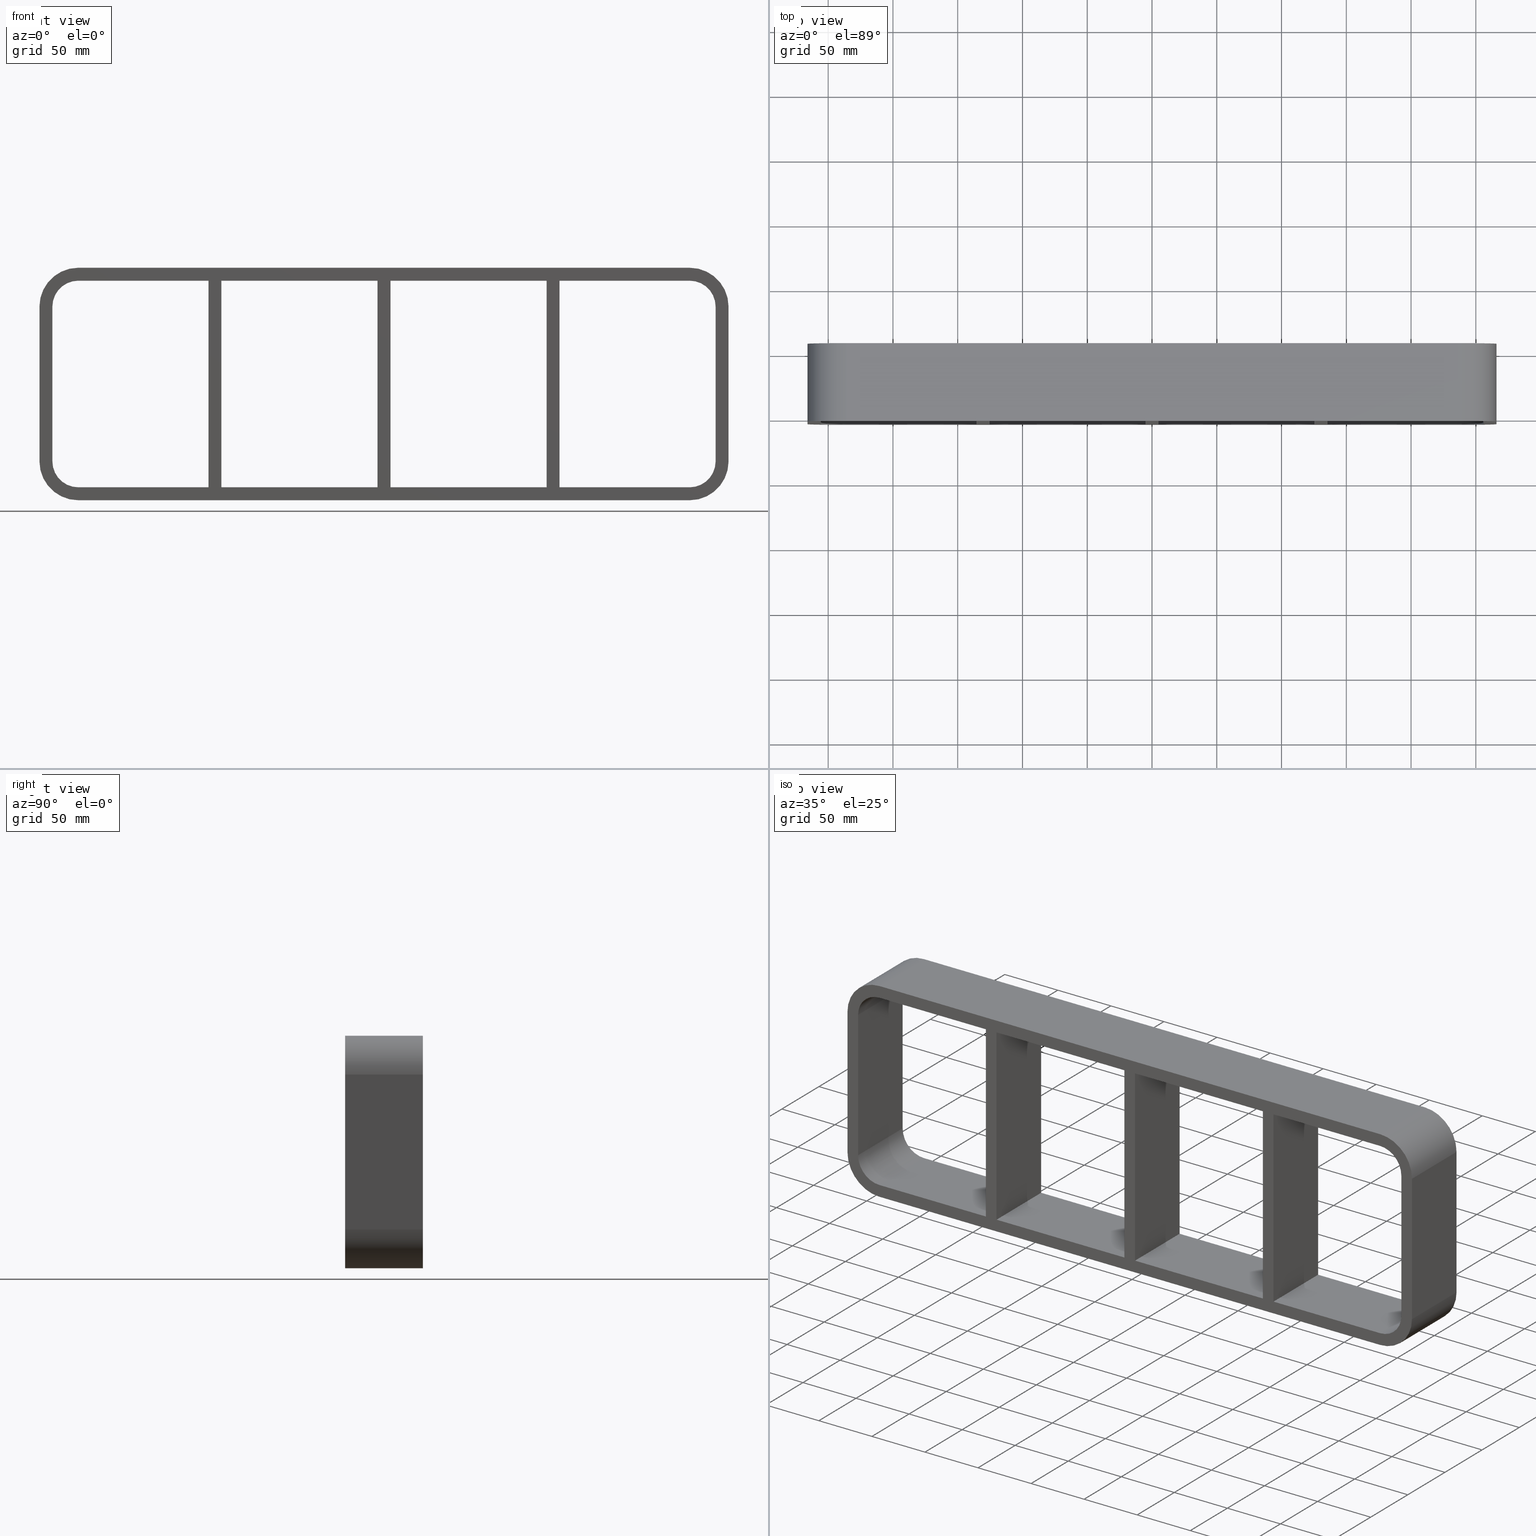
[diagram: canonical four-view strip — front | top / right | iso, engineering-drawing reading convention]
A machine part, canonical four-view strip (front | top / right | iso — engineering-drawing reading convention). The complete STEP part file that produces these views, byte-faithful:
ISO-10303-21;
HEADER;
/****************************************************************
 * Generated by software with PDElib inside                    *
 * PDElib Version v51a, created Wed 11/30/2011                  *
 * ITI Transcendata (http://www.transcendata.com/)              *
 ****************************************************************/
FILE_DESCRIPTION((''),'2;1');
FILE_NAME('N:\\Projects\\Ongoing_Projects\\12403 Transit Designer\\Product-data\\Product Data\\Transit designer Cad Generator\\CreatedFiles\\STEP\\SRCR20-4X4.stp','2014-10-31T09:51:29',(''),(''),'Autodesk Inventor 2013','Autodesk Inventor 2013','');
FILE_SCHEMA(('AUTOMOTIVE_DESIGN { 1 0 10303 214 1 1 1 1 }'));
ENDSEC;
DATA;
#5=APPLICATION_CONTEXT('automotive design');
#6=APPLICATION_PROTOCOL_DEFINITION('International Standard','automotive_design',2001,#5);
#7=PRODUCT_CONTEXT('',#5,'mechanical');
#8=PRODUCT('GH-ISO','GH-ISO',$,(#7));
#9=PRODUCT_RELATED_PRODUCT_CATEGORY('part',$,(#8));
#10=PRODUCT_DEFINITION_FORMATION('',$,#8);
#11=PRODUCT_DEFINITION_CONTEXT('part definition',#5,'design');
#12=PRODUCT_DEFINITION('',$,#10,#11);
#18=(NAMED_UNIT(*)PLANE_ANGLE_UNIT()SI_UNIT($,.RADIAN.));
#19=DIMENSIONAL_EXPONENTS(0.0,0.0,0.0,0.0,0.0,0.0,0.0);
#20=PLANE_ANGLE_MEASURE_WITH_UNIT(PLANE_ANGLE_MEASURE(0.0174532925),#18);
#24=(CONVERSION_BASED_UNIT('DEGREE',#20)NAMED_UNIT(#19)PLANE_ANGLE_UNIT());
#28=(NAMED_UNIT(*)SI_UNIT($,.STERADIAN.)SOLID_ANGLE_UNIT());
#32=(LENGTH_UNIT()NAMED_UNIT(*)SI_UNIT(.MILLI.,.METRE.));
#34=UNCERTAINTY_MEASURE_WITH_UNIT(LENGTH_MEASURE(0.01),#32,'DISTANCE_ACCURACY_VALUE','');
#36=(GEOMETRIC_REPRESENTATION_CONTEXT(3)GLOBAL_UNCERTAINTY_ASSIGNED_CONTEXT((#34))GLOBAL_UNIT_ASSIGNED_CONTEXT((#24,#28,#32))REPRESENTATION_CONTEXT('None','None'));
#37=AXIS2_PLACEMENT_3D('',#38,#39,#40);
#38=CARTESIAN_POINT('',(0.0,0.0,0.0));
#39=DIRECTION('',(0.0,0.0,1.0));
#40=DIRECTION('',(1.0,0.0,0.0));
#41=SHAPE_REPRESENTATION('',(#37),#36);
#42=PRODUCT_DEFINITION_SHAPE('','',#12);
#43=SHAPE_DEFINITION_REPRESENTATION(#42,#41);
#49=(NAMED_UNIT(*)PLANE_ANGLE_UNIT()SI_UNIT($,.RADIAN.));
#50=DIMENSIONAL_EXPONENTS(0.0,0.0,0.0,0.0,0.0,0.0,0.0);
#51=PLANE_ANGLE_MEASURE_WITH_UNIT(PLANE_ANGLE_MEASURE(0.0174532925),#49);
#55=(CONVERSION_BASED_UNIT('DEGREE',#51)NAMED_UNIT(#50)PLANE_ANGLE_UNIT());
#59=(NAMED_UNIT(*)SI_UNIT($,.STERADIAN.)SOLID_ANGLE_UNIT());
#63=(LENGTH_UNIT()NAMED_UNIT(*)SI_UNIT(.MILLI.,.METRE.));
#65=UNCERTAINTY_MEASURE_WITH_UNIT(LENGTH_MEASURE(0.000001),#63,'DISTANCE_ACCURACY_VALUE','');
#67=(GEOMETRIC_REPRESENTATION_CONTEXT(3)GLOBAL_UNCERTAINTY_ASSIGNED_CONTEXT((#65))GLOBAL_UNIT_ASSIGNED_CONTEXT((#55,#59,#63))REPRESENTATION_CONTEXT('','3D'));
#68=CARTESIAN_POINT('',(125.49999999999866,-3.0,-79.750000000000014));
#69=DIRECTION('',(-1.0,0.0,0.0));
#70=DIRECTION('',(0.0,0.0,1.0));
#71=AXIS2_PLACEMENT_3D('',#68,#69,#70);
#72=PLANE('',#71);
#73=CARTESIAN_POINT('',(125.49999999999866,-3.0,-79.750000000000014));
#74=VERTEX_POINT('',#73);
#75=CARTESIAN_POINT('',(125.49999999999869,-3.0,79.750000000000014));
#76=VERTEX_POINT('',#75);
#77=CARTESIAN_POINT('',(125.49999999999866,-3.0,-79.750000000000014));
#78=DIRECTION('',(0.0,0.0,1.0));
#79=VECTOR('',#78,159.50000000000003);
#80=LINE('',#77,#79);
#81=EDGE_CURVE('',#74,#76,#80,.T.);
#82=ORIENTED_EDGE('',*,*,#81,.T.);
#83=CARTESIAN_POINT('',(125.49999999999869,57.0,79.750000000000014));
#84=VERTEX_POINT('',#83);
#85=CARTESIAN_POINT('',(125.49999999999866,57.000000000000007,79.750000000000014));
#86=DIRECTION('',(0.0,-1.0,0.0));
#87=VECTOR('',#86,60.000000000000007);
#88=LINE('',#85,#87);
#89=EDGE_CURVE('',#84,#76,#88,.T.);
#90=ORIENTED_EDGE('',*,*,#89,.F.);
#91=CARTESIAN_POINT('',(125.49999999999866,57.0,-79.750000000000014));
#92=VERTEX_POINT('',#91);
#93=CARTESIAN_POINT('',(125.49999999999866,57.0,-79.750000000000014));
#94=DIRECTION('',(0.0,0.0,1.0));
#95=VECTOR('',#94,159.50000000000003);
#96=LINE('',#93,#95);
#97=EDGE_CURVE('',#92,#84,#96,.T.);
#98=ORIENTED_EDGE('',*,*,#97,.F.);
#99=CARTESIAN_POINT('',(125.49999999999866,-3.0,-79.750000000000014));
#100=DIRECTION('',(0.0,1.0,0.0));
#101=VECTOR('',#100,60.000000000000007);
#102=LINE('',#99,#101);
#103=EDGE_CURVE('',#74,#92,#102,.T.);
#104=ORIENTED_EDGE('',*,*,#103,.F.);
#105=EDGE_LOOP('',(#82,#90,#98,#104));
#106=FACE_OUTER_BOUND('',#105,.T.);
#107=ADVANCED_FACE('',(#106),#72,.T.);
#108=CARTESIAN_POINT('',(135.50000000000728,-3.0,79.750000000000014));
#109=DIRECTION('',(1.0,0.0,0.0));
#110=DIRECTION('',(0.0,0.0,-1.0));
#111=AXIS2_PLACEMENT_3D('',#108,#109,#110);
#112=PLANE('',#111);
#113=CARTESIAN_POINT('',(135.50000000000728,-3.0,79.750000000000014));
#114=VERTEX_POINT('',#113);
#115=CARTESIAN_POINT('',(135.50000000000728,-3.0,-79.74999999998424));
#116=VERTEX_POINT('',#115);
#117=CARTESIAN_POINT('',(135.50000000000728,-3.0,79.750000000000014));
#118=DIRECTION('',(0.0,0.0,-1.0));
#119=VECTOR('',#118,159.49999999998425);
#120=LINE('',#117,#119);
#121=EDGE_CURVE('',#114,#116,#120,.T.);
#122=ORIENTED_EDGE('',*,*,#121,.T.);
#123=CARTESIAN_POINT('',(135.50000000000728,57.0,-79.74999999998424));
#124=VERTEX_POINT('',#123);
#125=CARTESIAN_POINT('',(135.50000000000728,57.000000000000007,-79.750000000000014));
#126=DIRECTION('',(0.0,-1.0,0.0));
#127=VECTOR('',#126,60.000000000000007);
#128=LINE('',#125,#127);
#129=EDGE_CURVE('',#124,#116,#128,.T.);
#130=ORIENTED_EDGE('',*,*,#129,.F.);
#131=CARTESIAN_POINT('',(135.50000000000728,57.0,79.750000000000014));
#132=VERTEX_POINT('',#131);
#133=CARTESIAN_POINT('',(135.50000000000728,57.0,79.750000000000014));
#134=DIRECTION('',(0.0,0.0,-1.0));
#135=VECTOR('',#134,159.49999999998425);
#136=LINE('',#133,#135);
#137=EDGE_CURVE('',#132,#124,#136,.T.);
#138=ORIENTED_EDGE('',*,*,#137,.F.);
#139=CARTESIAN_POINT('',(135.50000000000728,-3.0,79.750000000000014));
#140=DIRECTION('',(0.0,1.0,0.0));
#141=VECTOR('',#140,60.000000000000007);
#142=LINE('',#139,#141);
#143=EDGE_CURVE('',#114,#132,#142,.T.);
#144=ORIENTED_EDGE('',*,*,#143,.F.);
#145=EDGE_LOOP('',(#122,#130,#138,#144));
#146=FACE_OUTER_BOUND('',#145,.T.);
#147=ADVANCED_FACE('',(#146),#112,.T.);
#148=CARTESIAN_POINT('',(-5.00000000000135,-3.0,-79.750000000000014));
#149=DIRECTION('',(-1.0,0.0,0.0));
#150=DIRECTION('',(0.0,0.0,1.0));
#151=AXIS2_PLACEMENT_3D('',#148,#149,#150);
#152=PLANE('',#151);
#153=CARTESIAN_POINT('',(-5.00000000000135,-3.0,-79.750000000000014));
#154=VERTEX_POINT('',#153);
#155=CARTESIAN_POINT('',(-5.000000000001315,-3.0,79.750000000000014));
#156=VERTEX_POINT('',#155);
#157=CARTESIAN_POINT('',(-5.00000000000135,-3.0,-79.750000000000014));
#158=DIRECTION('',(0.0,0.0,1.0));
#159=VECTOR('',#158,159.50000000000003);
#160=LINE('',#157,#159);
#161=EDGE_CURVE('',#154,#156,#160,.T.);
#162=ORIENTED_EDGE('',*,*,#161,.T.);
#163=CARTESIAN_POINT('',(-5.000000000001315,57.0,79.750000000000014));
#164=VERTEX_POINT('',#163);
#165=CARTESIAN_POINT('',(-5.000000000001315,57.000000000000007,79.750000000000014));
#166=DIRECTION('',(0.0,-1.0,0.0));
#167=VECTOR('',#166,60.000000000000007);
#168=LINE('',#165,#167);
#169=EDGE_CURVE('',#164,#156,#168,.T.);
#170=ORIENTED_EDGE('',*,*,#169,.F.);
#171=CARTESIAN_POINT('',(-5.00000000000135,57.0,-79.750000000000014));
#172=VERTEX_POINT('',#171);
#173=CARTESIAN_POINT('',(-5.00000000000135,57.0,-79.750000000000014));
#174=DIRECTION('',(0.0,0.0,1.0));
#175=VECTOR('',#174,159.50000000000003);
#176=LINE('',#173,#175);
#177=EDGE_CURVE('',#172,#164,#176,.T.);
#178=ORIENTED_EDGE('',*,*,#177,.F.);
#179=CARTESIAN_POINT('',(-5.00000000000135,-3.0,-79.750000000000014));
#180=DIRECTION('',(0.0,1.0,0.0));
#181=VECTOR('',#180,60.000000000000007);
#182=LINE('',#179,#181);
#183=EDGE_CURVE('',#154,#172,#182,.T.);
#184=ORIENTED_EDGE('',*,*,#183,.F.);
#185=EDGE_LOOP('',(#162,#170,#178,#184));
#186=FACE_OUTER_BOUND('',#185,.T.);
#187=ADVANCED_FACE('',(#186),#152,.T.);
#188=CARTESIAN_POINT('',(5.000000000007283,-3.0,79.750000000000014));
#189=DIRECTION('',(1.0,0.0,0.0));
#190=DIRECTION('',(0.0,0.0,-1.0));
#191=AXIS2_PLACEMENT_3D('',#188,#189,#190);
#192=PLANE('',#191);
#193=CARTESIAN_POINT('',(5.000000000007283,-3.0,79.750000000000014));
#194=VERTEX_POINT('',#193);
#195=CARTESIAN_POINT('',(5.000000000007283,-3.0,-79.74999999998424));
#196=VERTEX_POINT('',#195);
#197=CARTESIAN_POINT('',(5.000000000007283,-3.0,79.750000000000014));
#198=DIRECTION('',(0.0,0.0,-1.0));
#199=VECTOR('',#198,159.49999999998425);
#200=LINE('',#197,#199);
#201=EDGE_CURVE('',#194,#196,#200,.T.);
#202=ORIENTED_EDGE('',*,*,#201,.T.);
#203=CARTESIAN_POINT('',(5.000000000007283,57.0,-79.74999999998424));
#204=VERTEX_POINT('',#203);
#205=CARTESIAN_POINT('',(5.000000000007283,57.000000000000007,-79.750000000000014));
#206=DIRECTION('',(0.0,-1.0,0.0));
#207=VECTOR('',#206,60.000000000000007);
#208=LINE('',#205,#207);
#209=EDGE_CURVE('',#204,#196,#208,.T.);
#210=ORIENTED_EDGE('',*,*,#209,.F.);
#211=CARTESIAN_POINT('',(5.000000000007283,57.0,79.750000000000014));
#212=VERTEX_POINT('',#211);
#213=CARTESIAN_POINT('',(5.000000000007283,57.0,79.750000000000014));
#214=DIRECTION('',(0.0,0.0,-1.0));
#215=VECTOR('',#214,159.49999999998425);
#216=LINE('',#213,#215);
#217=EDGE_CURVE('',#212,#204,#216,.T.);
#218=ORIENTED_EDGE('',*,*,#217,.F.);
#219=CARTESIAN_POINT('',(5.000000000007283,-3.0,79.750000000000014));
#220=DIRECTION('',(0.0,1.0,0.0));
#221=VECTOR('',#220,60.000000000000007);
#222=LINE('',#219,#221);
#223=EDGE_CURVE('',#194,#212,#222,.T.);
#224=ORIENTED_EDGE('',*,*,#223,.F.);
#225=EDGE_LOOP('',(#202,#210,#218,#224));
#226=FACE_OUTER_BOUND('',#225,.T.);
#227=ADVANCED_FACE('',(#226),#192,.T.);
#228=CARTESIAN_POINT('',(256.00000000000006,0.0,-79.750000000000014));
#229=DIRECTION('',(0.0,0.0,-1.0));
#230=DIRECTION('',(-1.0,0.0,0.0));
#231=AXIS2_PLACEMENT_3D('',#228,#229,#230);
#232=PLANE('',#231);
#233=ORIENTED_EDGE('',*,*,#183,.T.);
#234=CARTESIAN_POINT('',(-125.49999999999272,57.0,-79.74999999998424));
#235=VERTEX_POINT('',#234);
#236=CARTESIAN_POINT('',(-125.49999999999275,57.0,-79.750000000000014));
#237=DIRECTION('',(1.0,0.0,0.0));
#238=VECTOR('',#237,120.49999999999142);
#239=LINE('',#236,#238);
#240=EDGE_CURVE('',#235,#172,#239,.T.);
#241=ORIENTED_EDGE('',*,*,#240,.F.);
#242=CARTESIAN_POINT('',(-125.49999999999272,-3.0,-79.74999999998424));
#243=VERTEX_POINT('',#242);
#244=CARTESIAN_POINT('',(-125.49999999999274,57.000000000000007,-79.750000000000014));
#245=DIRECTION('',(0.0,-1.0,0.0));
#246=VECTOR('',#245,60.000000000000007);
#247=LINE('',#244,#246);
#248=EDGE_CURVE('',#235,#243,#247,.T.);
#249=ORIENTED_EDGE('',*,*,#248,.T.);
#250=CARTESIAN_POINT('',(-5.000000000001336,-3.0,-79.750000000000014));
#251=DIRECTION('',(-1.0,0.0,0.0));
#252=VECTOR('',#251,120.49999999999142);
#253=LINE('',#250,#252);
#254=EDGE_CURVE('',#154,#243,#253,.T.);
#255=ORIENTED_EDGE('',*,*,#254,.F.);
#256=EDGE_LOOP('',(#233,#241,#249,#255));
#257=FACE_OUTER_BOUND('',#256,.T.);
#258=ADVANCED_FACE('',(#257),#232,.F.);
#259=CARTESIAN_POINT('',(256.00000000000006,0.0,-79.750000000000014));
#260=DIRECTION('',(0.0,0.0,-1.0));
#261=DIRECTION('',(-1.0,0.0,0.0));
#262=AXIS2_PLACEMENT_3D('',#259,#260,#261);
#263=PLANE('',#262);
#264=ORIENTED_EDGE('',*,*,#103,.T.);
#265=CARTESIAN_POINT('',(5.00000000000729,57.0,-79.750000000000014));
#266=DIRECTION('',(1.0,0.0,0.0));
#267=VECTOR('',#266,120.49999999999137);
#268=LINE('',#265,#267);
#269=EDGE_CURVE('',#204,#92,#268,.T.);
#270=ORIENTED_EDGE('',*,*,#269,.F.);
#271=ORIENTED_EDGE('',*,*,#209,.T.);
#272=CARTESIAN_POINT('',(125.49999999999866,-3.0,-79.750000000000014));
#273=DIRECTION('',(-1.0,0.0,0.0));
#274=VECTOR('',#273,120.49999999999137);
#275=LINE('',#272,#274);
#276=EDGE_CURVE('',#74,#196,#275,.T.);
#277=ORIENTED_EDGE('',*,*,#276,.F.);
#278=EDGE_LOOP('',(#264,#270,#271,#277));
#279=FACE_OUTER_BOUND('',#278,.T.);
#280=ADVANCED_FACE('',(#279),#263,.F.);
#281=CARTESIAN_POINT('',(256.00000000000006,0.0,-79.750000000000014));
#282=DIRECTION('',(0.0,0.0,-1.0));
#283=DIRECTION('',(-1.0,0.0,0.0));
#284=AXIS2_PLACEMENT_3D('',#281,#282,#283);
#285=PLANE('',#284);
#286=ORIENTED_EDGE('',*,*,#129,.T.);
#287=CARTESIAN_POINT('',(236.00000000000006,-3.0,-79.750000000000014));
#288=VERTEX_POINT('',#287);
#289=CARTESIAN_POINT('',(236.00000000000006,-3.0,-79.750000000000014));
#290=DIRECTION('',(-1.0,0.0,0.0));
#291=VECTOR('',#290,100.49999999999275);
#292=LINE('',#289,#291);
#293=EDGE_CURVE('',#288,#116,#292,.T.);
#294=ORIENTED_EDGE('',*,*,#293,.F.);
#295=CARTESIAN_POINT('',(236.00000000000006,57.0,-79.750000000000014));
#296=VERTEX_POINT('',#295);
#297=CARTESIAN_POINT('',(236.00000000000006,57.0,-79.750000000000014));
#298=DIRECTION('',(0.0,-1.0,0.0));
#299=VECTOR('',#298,60.0);
#300=LINE('',#297,#299);
#301=EDGE_CURVE('',#296,#288,#300,.T.);
#302=ORIENTED_EDGE('',*,*,#301,.F.);
#303=CARTESIAN_POINT('',(135.5000000000073,57.0,-79.750000000000014));
#304=DIRECTION('',(1.0,0.0,0.0));
#305=VECTOR('',#304,100.49999999999275);
#306=LINE('',#303,#305);
#307=EDGE_CURVE('',#124,#296,#306,.T.);
#308=ORIENTED_EDGE('',*,*,#307,.F.);
#309=EDGE_LOOP('',(#286,#294,#302,#308));
#310=FACE_OUTER_BOUND('',#309,.T.);
#311=ADVANCED_FACE('',(#310),#285,.F.);
#312=CARTESIAN_POINT('',(-256.0,0.0,79.750000000000014));
#313=DIRECTION('',(0.0,0.0,1.0));
#314=DIRECTION('',(1.0,0.0,0.0));
#315=AXIS2_PLACEMENT_3D('',#312,#313,#314);
#316=PLANE('',#315);
#317=ORIENTED_EDGE('',*,*,#169,.T.);
#318=CARTESIAN_POINT('',(-125.49999999999272,-3.0,79.750000000000014));
#319=VERTEX_POINT('',#318);
#320=CARTESIAN_POINT('',(-125.49999999999272,-3.0,79.750000000000014));
#321=DIRECTION('',(1.0,0.0,0.0));
#322=VECTOR('',#321,120.49999999999142);
#323=LINE('',#320,#322);
#324=EDGE_CURVE('',#319,#156,#323,.T.);
#325=ORIENTED_EDGE('',*,*,#324,.F.);
#326=CARTESIAN_POINT('',(-125.49999999999272,57.0,79.750000000000014));
#327=VERTEX_POINT('',#326);
#328=CARTESIAN_POINT('',(-125.49999999999272,-3.0,79.750000000000014));
#329=DIRECTION('',(0.0,1.0,0.0));
#330=VECTOR('',#329,60.000000000000007);
#331=LINE('',#328,#330);
#332=EDGE_CURVE('',#319,#327,#331,.T.);
#333=ORIENTED_EDGE('',*,*,#332,.T.);
#334=CARTESIAN_POINT('',(-5.000000000001307,57.0,79.750000000000014));
#335=DIRECTION('',(-1.0,0.0,0.0));
#336=VECTOR('',#335,120.49999999999142);
#337=LINE('',#334,#336);
#338=EDGE_CURVE('',#164,#327,#337,.T.);
#339=ORIENTED_EDGE('',*,*,#338,.F.);
#340=EDGE_LOOP('',(#317,#325,#333,#339));
#341=FACE_OUTER_BOUND('',#340,.T.);
#342=ADVANCED_FACE('',(#341),#316,.F.);
#343=CARTESIAN_POINT('',(-256.0,0.0,79.750000000000014));
#344=DIRECTION('',(0.0,0.0,1.0));
#345=DIRECTION('',(1.0,0.0,0.0));
#346=AXIS2_PLACEMENT_3D('',#343,#344,#345);
#347=PLANE('',#346);
#348=ORIENTED_EDGE('',*,*,#143,.T.);
#349=CARTESIAN_POINT('',(236.00000000000006,57.0,79.750000000000014));
#350=VERTEX_POINT('',#349);
#351=CARTESIAN_POINT('',(236.00000000000006,57.0,79.750000000000014));
#352=DIRECTION('',(-1.0,0.0,0.0));
#353=VECTOR('',#352,100.49999999999278);
#354=LINE('',#351,#353);
#355=EDGE_CURVE('',#350,#132,#354,.T.);
#356=ORIENTED_EDGE('',*,*,#355,.F.);
#357=CARTESIAN_POINT('',(236.00000000000006,-3.0,79.750000000000014));
#358=VERTEX_POINT('',#357);
#359=CARTESIAN_POINT('',(236.0,-3.0,79.750000000000014));
#360=DIRECTION('',(0.0,1.0,0.0));
#361=VECTOR('',#360,60.0);
#362=LINE('',#359,#361);
#363=EDGE_CURVE('',#358,#350,#362,.T.);
#364=ORIENTED_EDGE('',*,*,#363,.F.);
#365=CARTESIAN_POINT('',(135.50000000000728,-3.0,79.750000000000014));
#366=DIRECTION('',(1.0,0.0,0.0));
#367=VECTOR('',#366,100.49999999999278);
#368=LINE('',#365,#367);
#369=EDGE_CURVE('',#114,#358,#368,.T.);
#370=ORIENTED_EDGE('',*,*,#369,.F.);
#371=EDGE_LOOP('',(#348,#356,#364,#370));
#372=FACE_OUTER_BOUND('',#371,.T.);
#373=ADVANCED_FACE('',(#372),#347,.F.);
#374=CARTESIAN_POINT('',(-256.0,0.0,79.750000000000014));
#375=DIRECTION('',(0.0,0.0,1.0));
#376=DIRECTION('',(1.0,0.0,0.0));
#377=AXIS2_PLACEMENT_3D('',#374,#375,#376);
#378=PLANE('',#377);
#379=ORIENTED_EDGE('',*,*,#89,.T.);
#380=CARTESIAN_POINT('',(5.000000000007276,-3.0,79.750000000000014));
#381=DIRECTION('',(1.0,0.0,0.0));
#382=VECTOR('',#381,120.49999999999142);
#383=LINE('',#380,#382);
#384=EDGE_CURVE('',#194,#76,#383,.T.);
#385=ORIENTED_EDGE('',*,*,#384,.F.);
#386=ORIENTED_EDGE('',*,*,#223,.T.);
#387=CARTESIAN_POINT('',(125.49999999999869,57.0,79.750000000000014));
#388=DIRECTION('',(-1.0,0.0,0.0));
#389=VECTOR('',#388,120.49999999999142);
#390=LINE('',#387,#389);
#391=EDGE_CURVE('',#84,#212,#390,.T.);
#392=ORIENTED_EDGE('',*,*,#391,.F.);
#393=EDGE_LOOP('',(#379,#385,#386,#392));
#394=FACE_OUTER_BOUND('',#393,.T.);
#395=ADVANCED_FACE('',(#394),#378,.F.);
#396=CARTESIAN_POINT('',(-135.50000000000136,-3.0,-79.750000000000014));
#397=DIRECTION('',(-1.0,0.0,0.0));
#398=DIRECTION('',(0.0,0.0,1.0));
#399=AXIS2_PLACEMENT_3D('',#396,#397,#398);
#400=PLANE('',#399);
#401=CARTESIAN_POINT('',(-135.50000000000136,-3.0,-79.750000000000014));
#402=VERTEX_POINT('',#401);
#403=CARTESIAN_POINT('',(-135.50000000000131,-3.0,79.750000000000014));
#404=VERTEX_POINT('',#403);
#405=CARTESIAN_POINT('',(-135.50000000000136,-3.0,-79.750000000000014));
#406=DIRECTION('',(0.0,0.0,1.0));
#407=VECTOR('',#406,159.50000000000003);
#408=LINE('',#405,#407);
#409=EDGE_CURVE('',#402,#404,#408,.T.);
#410=ORIENTED_EDGE('',*,*,#409,.T.);
#411=CARTESIAN_POINT('',(-135.50000000000131,57.0,79.750000000000014));
#412=VERTEX_POINT('',#411);
#413=CARTESIAN_POINT('',(-135.50000000000131,57.000000000000007,79.750000000000014));
#414=DIRECTION('',(0.0,-1.0,0.0));
#415=VECTOR('',#414,60.000000000000007);
#416=LINE('',#413,#415);
#417=EDGE_CURVE('',#412,#404,#416,.T.);
#418=ORIENTED_EDGE('',*,*,#417,.F.);
#419=CARTESIAN_POINT('',(-135.50000000000136,57.0,-79.750000000000014));
#420=VERTEX_POINT('',#419);
#421=CARTESIAN_POINT('',(-135.50000000000136,57.0,-79.750000000000014));
#422=DIRECTION('',(0.0,0.0,1.0));
#423=VECTOR('',#422,159.50000000000003);
#424=LINE('',#421,#423);
#425=EDGE_CURVE('',#420,#412,#424,.T.);
#426=ORIENTED_EDGE('',*,*,#425,.F.);
#427=CARTESIAN_POINT('',(-135.50000000000136,-3.0,-79.750000000000014));
#428=DIRECTION('',(0.0,1.0,0.0));
#429=VECTOR('',#428,60.000000000000007);
#430=LINE('',#427,#429);
#431=EDGE_CURVE('',#402,#420,#430,.T.);
#432=ORIENTED_EDGE('',*,*,#431,.F.);
#433=EDGE_LOOP('',(#410,#418,#426,#432));
#434=FACE_OUTER_BOUND('',#433,.T.);
#435=ADVANCED_FACE('',(#434),#400,.T.);
#436=CARTESIAN_POINT('',(-125.49999999999272,-3.0,79.750000000000014));
#437=DIRECTION('',(1.0,0.0,0.0));
#438=DIRECTION('',(0.0,0.0,-1.0));
#439=AXIS2_PLACEMENT_3D('',#436,#437,#438);
#440=PLANE('',#439);
#441=CARTESIAN_POINT('',(-125.49999999999272,-3.0,79.750000000000014));
#442=DIRECTION('',(0.0,0.0,-1.0));
#443=VECTOR('',#442,159.49999999998425);
#444=LINE('',#441,#443);
#445=EDGE_CURVE('',#319,#243,#444,.T.);
#446=ORIENTED_EDGE('',*,*,#445,.T.);
#447=ORIENTED_EDGE('',*,*,#248,.F.);
#448=CARTESIAN_POINT('',(-125.49999999999272,57.0,79.750000000000014));
#449=DIRECTION('',(0.0,0.0,-1.0));
#450=VECTOR('',#449,159.49999999998425);
#451=LINE('',#448,#450);
#452=EDGE_CURVE('',#327,#235,#451,.T.);
#453=ORIENTED_EDGE('',*,*,#452,.F.);
#454=ORIENTED_EDGE('',*,*,#332,.F.);
#455=EDGE_LOOP('',(#446,#447,#453,#454));
#456=FACE_OUTER_BOUND('',#455,.T.);
#457=ADVANCED_FACE('',(#456),#440,.T.);
#458=CARTESIAN_POINT('',(256.00000000000006,0.0,-79.750000000000014));
#459=DIRECTION('',(0.0,0.0,-1.0));
#460=DIRECTION('',(-1.0,0.0,0.0));
#461=AXIS2_PLACEMENT_3D('',#458,#459,#460);
#462=PLANE('',#461);
#463=ORIENTED_EDGE('',*,*,#431,.T.);
#464=CARTESIAN_POINT('',(-236.0,57.0,-79.750000000000014));
#465=VERTEX_POINT('',#464);
#466=CARTESIAN_POINT('',(-236.00000000000003,57.0,-79.750000000000014));
#467=DIRECTION('',(1.0,0.0,0.0));
#468=VECTOR('',#467,100.49999999999869);
#469=LINE('',#466,#468);
#470=EDGE_CURVE('',#465,#420,#469,.T.);
#471=ORIENTED_EDGE('',*,*,#470,.F.);
#472=CARTESIAN_POINT('',(-236.0,-3.0,-79.750000000000014));
#473=VERTEX_POINT('',#472);
#474=CARTESIAN_POINT('',(-236.0,-3.0,-79.750000000000014));
#475=DIRECTION('',(0.0,1.0,0.0));
#476=VECTOR('',#475,60.0);
#477=LINE('',#474,#476);
#478=EDGE_CURVE('',#473,#465,#477,.T.);
#479=ORIENTED_EDGE('',*,*,#478,.F.);
#480=CARTESIAN_POINT('',(-135.50000000000134,-3.0,-79.750000000000014));
#481=DIRECTION('',(-1.0,0.0,0.0));
#482=VECTOR('',#481,100.49999999999869);
#483=LINE('',#480,#482);
#484=EDGE_CURVE('',#402,#473,#483,.T.);
#485=ORIENTED_EDGE('',*,*,#484,.F.);
#486=EDGE_LOOP('',(#463,#471,#479,#485));
#487=FACE_OUTER_BOUND('',#486,.T.);
#488=ADVANCED_FACE('',(#487),#462,.F.);
#489=CARTESIAN_POINT('',(-256.0,0.0,79.750000000000014));
#490=DIRECTION('',(0.0,0.0,1.0));
#491=DIRECTION('',(1.0,0.0,0.0));
#492=AXIS2_PLACEMENT_3D('',#489,#490,#491);
#493=PLANE('',#492);
#494=ORIENTED_EDGE('',*,*,#417,.T.);
#495=CARTESIAN_POINT('',(-236.0,-3.0,79.750000000000014));
#496=VERTEX_POINT('',#495);
#497=CARTESIAN_POINT('',(-236.0,-3.0,79.750000000000014));
#498=DIRECTION('',(1.0,0.0,0.0));
#499=VECTOR('',#498,100.49999999999869);
#500=LINE('',#497,#499);
#501=EDGE_CURVE('',#496,#404,#500,.T.);
#502=ORIENTED_EDGE('',*,*,#501,.F.);
#503=CARTESIAN_POINT('',(-236.0,57.0,79.750000000000014));
#504=VERTEX_POINT('',#503);
#505=CARTESIAN_POINT('',(-236.0,57.0,79.750000000000014));
#506=DIRECTION('',(0.0,-1.0,0.0));
#507=VECTOR('',#506,60.0);
#508=LINE('',#505,#507);
#509=EDGE_CURVE('',#504,#496,#508,.T.);
#510=ORIENTED_EDGE('',*,*,#509,.F.);
#511=CARTESIAN_POINT('',(-135.50000000000131,57.0,79.750000000000014));
#512=DIRECTION('',(-1.0,0.0,0.0));
#513=VECTOR('',#512,100.49999999999869);
#514=LINE('',#511,#513);
#515=EDGE_CURVE('',#412,#504,#514,.T.);
#516=ORIENTED_EDGE('',*,*,#515,.F.);
#517=EDGE_LOOP('',(#494,#502,#510,#516));
#518=FACE_OUTER_BOUND('',#517,.T.);
#519=ADVANCED_FACE('',(#518),#493,.F.);
#520=CARTESIAN_POINT('',(236.0,0.0,-59.750000000000014));
#521=DIRECTION('',(0.0,1.0,0.0));
#522=DIRECTION('',(0.707106781186547,0.0,-0.707106781186547));
#523=AXIS2_PLACEMENT_3D('',#520,#521,#522);
#524=CYLINDRICAL_SURFACE('',#523,30.000000000000004);
#525=CARTESIAN_POINT('',(236.0,57.0,-89.750000000000014));
#526=VERTEX_POINT('',#525);
#527=CARTESIAN_POINT('',(266.0,57.0,-59.750000000000014));
#528=VERTEX_POINT('',#527);
#529=CARTESIAN_POINT('',(236.0,57.0,-59.750000000000014));
#530=DIRECTION('',(0.0,-1.0,0.0));
#531=DIRECTION('',(0.707106781186547,0.0,-0.707106781186547));
#532=AXIS2_PLACEMENT_3D('',#529,#530,#531);
#533=CIRCLE('',#532,30.0);
#534=EDGE_CURVE('',#526,#528,#533,.T.);
#535=ORIENTED_EDGE('',*,*,#534,.T.);
#536=CARTESIAN_POINT('',(266.0,-3.0,-59.750000000000014));
#537=VERTEX_POINT('',#536);
#538=CARTESIAN_POINT('',(266.0,57.0,-59.750000000000014));
#539=DIRECTION('',(0.0,-1.0,0.0));
#540=VECTOR('',#539,60.0);
#541=LINE('',#538,#540);
#542=EDGE_CURVE('',#528,#537,#541,.T.);
#543=ORIENTED_EDGE('',*,*,#542,.T.);
#544=CARTESIAN_POINT('',(236.0,-3.0,-89.750000000000014));
#545=VERTEX_POINT('',#544);
#546=CARTESIAN_POINT('',(236.0,-3.0,-59.750000000000014));
#547=DIRECTION('',(0.0,1.0,0.0));
#548=DIRECTION('',(0.707106781186547,0.0,-0.707106781186547));
#549=AXIS2_PLACEMENT_3D('',#546,#547,#548);
#550=CIRCLE('',#549,30.0);
#551=EDGE_CURVE('',#537,#545,#550,.T.);
#552=ORIENTED_EDGE('',*,*,#551,.T.);
#553=CARTESIAN_POINT('',(236.0,-3.0,-89.750000000000014));
#554=DIRECTION('',(0.0,1.0,0.0));
#555=VECTOR('',#554,60.0);
#556=LINE('',#553,#555);
#557=EDGE_CURVE('',#545,#526,#556,.T.);
#558=ORIENTED_EDGE('',*,*,#557,.T.);
#559=EDGE_LOOP('',(#535,#543,#552,#558));
#560=FACE_OUTER_BOUND('',#559,.T.);
#561=ADVANCED_FACE('',(#560),#524,.T.);
#562=CARTESIAN_POINT('',(0.0,-3.0,0.0));
#563=DIRECTION('',(0.0,1.0,0.0));
#564=DIRECTION('',(0.0,0.0,1.0));
#565=AXIS2_PLACEMENT_3D('',#562,#563,#564);
#566=PLANE('',#565);
#567=ORIENTED_EDGE('',*,*,#551,.F.);
#568=CARTESIAN_POINT('',(266.0,-3.0,59.750000000000014));
#569=VERTEX_POINT('',#568);
#570=CARTESIAN_POINT('',(266.0,-3.0,-59.750000000000014));
#571=DIRECTION('',(0.0,0.0,1.0));
#572=VECTOR('',#571,119.50000000000003);
#573=LINE('',#570,#572);
#574=EDGE_CURVE('',#537,#569,#573,.T.);
#575=ORIENTED_EDGE('',*,*,#574,.T.);
#576=CARTESIAN_POINT('',(236.0,-3.0,89.750000000000014));
#577=VERTEX_POINT('',#576);
#578=CARTESIAN_POINT('',(236.0,-3.0,59.750000000000014));
#579=DIRECTION('',(0.0,1.0,0.0));
#580=DIRECTION('',(0.707106781186547,0.0,0.707106781186547));
#581=AXIS2_PLACEMENT_3D('',#578,#579,#580);
#582=CIRCLE('',#581,30.0);
#583=EDGE_CURVE('',#577,#569,#582,.T.);
#584=ORIENTED_EDGE('',*,*,#583,.F.);
#585=CARTESIAN_POINT('',(-236.0,-3.0,89.750000000000014));
#586=VERTEX_POINT('',#585);
#587=CARTESIAN_POINT('',(236.0,-3.0,89.750000000000014));
#588=DIRECTION('',(-1.0,0.0,0.0));
#589=VECTOR('',#588,472.0);
#590=LINE('',#587,#589);
#591=EDGE_CURVE('',#577,#586,#590,.T.);
#592=ORIENTED_EDGE('',*,*,#591,.T.);
#593=CARTESIAN_POINT('',(-266.0,-3.0,59.750000000000014));
#594=VERTEX_POINT('',#593);
#595=CARTESIAN_POINT('',(-236.0,-3.0,59.750000000000014));
#596=DIRECTION('',(0.0,1.0,0.0));
#597=DIRECTION('',(-0.707106781186547,0.0,0.707106781186547));
#598=AXIS2_PLACEMENT_3D('',#595,#596,#597);
#599=CIRCLE('',#598,30.0);
#600=EDGE_CURVE('',#594,#586,#599,.T.);
#601=ORIENTED_EDGE('',*,*,#600,.F.);
#602=CARTESIAN_POINT('',(-266.0,-3.0,-59.750000000000014));
#603=VERTEX_POINT('',#602);
#604=CARTESIAN_POINT('',(-266.0,-3.0,59.750000000000014));
#605=DIRECTION('',(0.0,0.0,-1.0));
#606=VECTOR('',#605,119.50000000000003);
#607=LINE('',#604,#606);
#608=EDGE_CURVE('',#594,#603,#607,.T.);
#609=ORIENTED_EDGE('',*,*,#608,.T.);
#610=CARTESIAN_POINT('',(-236.0,-3.0,-89.750000000000014));
#611=VERTEX_POINT('',#610);
#612=CARTESIAN_POINT('',(-236.0,-3.0,-59.750000000000014));
#613=DIRECTION('',(0.0,1.0,0.0));
#614=DIRECTION('',(-0.707106781186547,0.0,-0.707106781186547));
#615=AXIS2_PLACEMENT_3D('',#612,#613,#614);
#616=CIRCLE('',#615,30.0);
#617=EDGE_CURVE('',#611,#603,#616,.T.);
#618=ORIENTED_EDGE('',*,*,#617,.F.);
#619=CARTESIAN_POINT('',(-236.0,-3.0,-89.750000000000014));
#620=DIRECTION('',(1.0,0.0,0.0));
#621=VECTOR('',#620,472.0);
#622=LINE('',#619,#621);
#623=EDGE_CURVE('',#611,#545,#622,.T.);
#624=ORIENTED_EDGE('',*,*,#623,.T.);
#625=EDGE_LOOP('',(#567,#575,#584,#592,#601,#609,#618,#624));
#626=FACE_OUTER_BOUND('',#625,.T.);
#627=ORIENTED_EDGE('',*,*,#276,.T.);
#628=ORIENTED_EDGE('',*,*,#201,.F.);
#629=ORIENTED_EDGE('',*,*,#384,.T.);
#630=ORIENTED_EDGE('',*,*,#81,.F.);
#631=EDGE_LOOP('',(#627,#628,#629,#630));
#632=FACE_BOUND('',#631,.T.);
#633=ORIENTED_EDGE('',*,*,#254,.T.);
#634=ORIENTED_EDGE('',*,*,#445,.F.);
#635=ORIENTED_EDGE('',*,*,#324,.T.);
#636=ORIENTED_EDGE('',*,*,#161,.F.);
#637=EDGE_LOOP('',(#633,#634,#635,#636));
#638=FACE_BOUND('',#637,.T.);
#639=ORIENTED_EDGE('',*,*,#484,.T.);
#640=CARTESIAN_POINT('',(-256.0,-3.0,-59.750000000000014));
#641=VERTEX_POINT('',#640);
#642=CARTESIAN_POINT('',(-236.0,-3.0,-59.750000000000014));
#643=DIRECTION('',(0.0,-1.0,0.0));
#644=DIRECTION('',(-0.707106781186547,0.0,-0.707106781186547));
#645=AXIS2_PLACEMENT_3D('',#642,#643,#644);
#646=CIRCLE('',#645,19.999999999999996);
#647=EDGE_CURVE('',#641,#473,#646,.T.);
#648=ORIENTED_EDGE('',*,*,#647,.F.);
#649=CARTESIAN_POINT('',(-256.0,-3.0,59.750000000000014));
#650=VERTEX_POINT('',#649);
#651=CARTESIAN_POINT('',(-256.0,-3.0,-59.750000000000014));
#652=DIRECTION('',(0.0,0.0,1.0));
#653=VECTOR('',#652,119.50000000000003);
#654=LINE('',#651,#653);
#655=EDGE_CURVE('',#641,#650,#654,.T.);
#656=ORIENTED_EDGE('',*,*,#655,.T.);
#657=CARTESIAN_POINT('',(-236.0,-3.0,59.750000000000014));
#658=DIRECTION('',(0.0,-1.0,0.0));
#659=DIRECTION('',(-0.707106781186547,0.0,0.707106781186547));
#660=AXIS2_PLACEMENT_3D('',#657,#658,#659);
#661=CIRCLE('',#660,19.999999999999996);
#662=EDGE_CURVE('',#496,#650,#661,.T.);
#663=ORIENTED_EDGE('',*,*,#662,.F.);
#664=ORIENTED_EDGE('',*,*,#501,.T.);
#665=ORIENTED_EDGE('',*,*,#409,.F.);
#666=EDGE_LOOP('',(#639,#648,#656,#663,#664,#665));
#667=FACE_BOUND('',#666,.T.);
#668=ORIENTED_EDGE('',*,*,#121,.F.);
#669=ORIENTED_EDGE('',*,*,#369,.T.);
#670=CARTESIAN_POINT('',(256.00000000000006,-3.0,59.750000000000014));
#671=VERTEX_POINT('',#670);
#672=CARTESIAN_POINT('',(236.0,-3.0,59.750000000000014));
#673=DIRECTION('',(0.0,-1.0,0.0));
#674=DIRECTION('',(0.707106781186547,0.0,0.707106781186547));
#675=AXIS2_PLACEMENT_3D('',#672,#673,#674);
#676=CIRCLE('',#675,19.999999999999996);
#677=EDGE_CURVE('',#671,#358,#676,.T.);
#678=ORIENTED_EDGE('',*,*,#677,.F.);
#679=CARTESIAN_POINT('',(256.00000000000006,-3.0,-59.750000000000014));
#680=VERTEX_POINT('',#679);
#681=CARTESIAN_POINT('',(256.00000000000006,-3.0,59.750000000000014));
#682=DIRECTION('',(0.0,0.0,-1.0));
#683=VECTOR('',#682,119.50000000000003);
#684=LINE('',#681,#683);
#685=EDGE_CURVE('',#671,#680,#684,.T.);
#686=ORIENTED_EDGE('',*,*,#685,.T.);
#687=CARTESIAN_POINT('',(236.00000000000006,-3.0,-59.750000000000014));
#688=DIRECTION('',(0.0,-1.0,0.0));
#689=DIRECTION('',(0.707106781186547,0.0,-0.707106781186547));
#690=AXIS2_PLACEMENT_3D('',#687,#688,#689);
#691=CIRCLE('',#690,19.999999999999996);
#692=EDGE_CURVE('',#288,#680,#691,.T.);
#693=ORIENTED_EDGE('',*,*,#692,.F.);
#694=ORIENTED_EDGE('',*,*,#293,.T.);
#695=EDGE_LOOP('',(#668,#669,#678,#686,#693,#694));
#696=FACE_BOUND('',#695,.T.);
#697=ADVANCED_FACE('',(#626,#632,#638,#667,#696),#566,.F.);
#698=CARTESIAN_POINT('',(266.0,0.0,89.750000000000014));
#699=DIRECTION('',(1.0,0.0,0.0));
#700=DIRECTION('',(0.0,0.0,-1.0));
#701=AXIS2_PLACEMENT_3D('',#698,#699,#700);
#702=PLANE('',#701);
#703=ORIENTED_EDGE('',*,*,#542,.F.);
#704=CARTESIAN_POINT('',(266.0,57.0,59.750000000000014));
#705=VERTEX_POINT('',#704);
#706=CARTESIAN_POINT('',(266.0,57.0,59.750000000000014));
#707=DIRECTION('',(0.0,0.0,-1.0));
#708=VECTOR('',#707,119.50000000000003);
#709=LINE('',#706,#708);
#710=EDGE_CURVE('',#705,#528,#709,.T.);
#711=ORIENTED_EDGE('',*,*,#710,.F.);
#712=CARTESIAN_POINT('',(266.0,-3.0,59.750000000000014));
#713=DIRECTION('',(0.0,1.0,0.0));
#714=VECTOR('',#713,60.0);
#715=LINE('',#712,#714);
#716=EDGE_CURVE('',#569,#705,#715,.T.);
#717=ORIENTED_EDGE('',*,*,#716,.F.);
#718=ORIENTED_EDGE('',*,*,#574,.F.);
#719=EDGE_LOOP('',(#703,#711,#717,#718));
#720=FACE_OUTER_BOUND('',#719,.T.);
#721=ADVANCED_FACE('',(#720),#702,.T.);
#722=CARTESIAN_POINT('',(236.0,0.0,59.750000000000014));
#723=DIRECTION('',(0.0,-1.0,0.0));
#724=DIRECTION('',(0.707106781186547,0.0,0.707106781186547));
#725=AXIS2_PLACEMENT_3D('',#722,#723,#724);
#726=CYLINDRICAL_SURFACE('',#725,30.000000000000004);
#727=ORIENTED_EDGE('',*,*,#583,.T.);
#728=ORIENTED_EDGE('',*,*,#716,.T.);
#729=CARTESIAN_POINT('',(236.0,57.0,89.750000000000014));
#730=VERTEX_POINT('',#729);
#731=CARTESIAN_POINT('',(236.0,57.0,59.750000000000014));
#732=DIRECTION('',(0.0,-1.0,0.0));
#733=DIRECTION('',(0.707106781186547,0.0,0.707106781186547));
#734=AXIS2_PLACEMENT_3D('',#731,#732,#733);
#735=CIRCLE('',#734,30.0);
#736=EDGE_CURVE('',#705,#730,#735,.T.);
#737=ORIENTED_EDGE('',*,*,#736,.T.);
#738=CARTESIAN_POINT('',(236.0,57.0,89.750000000000014));
#739=DIRECTION('',(0.0,-1.0,0.0));
#740=VECTOR('',#739,60.0);
#741=LINE('',#738,#740);
#742=EDGE_CURVE('',#730,#577,#741,.T.);
#743=ORIENTED_EDGE('',*,*,#742,.T.);
#744=EDGE_LOOP('',(#727,#728,#737,#743));
#745=FACE_OUTER_BOUND('',#744,.T.);
#746=ADVANCED_FACE('',(#745),#726,.T.);
#747=CARTESIAN_POINT('',(-236.0,0.0,-59.750000000000014));
#748=DIRECTION('',(0.0,1.0,0.0));
#749=DIRECTION('',(-0.707106781186547,0.0,-0.707106781186547));
#750=AXIS2_PLACEMENT_3D('',#747,#748,#749);
#751=CYLINDRICAL_SURFACE('',#750,30.000000000000004);
#752=CARTESIAN_POINT('',(-266.0,57.0,-59.750000000000014));
#753=VERTEX_POINT('',#752);
#754=CARTESIAN_POINT('',(-236.0,57.0,-89.750000000000014));
#755=VERTEX_POINT('',#754);
#756=CARTESIAN_POINT('',(-236.0,57.0,-59.750000000000014));
#757=DIRECTION('',(0.0,-1.0,0.0));
#758=DIRECTION('',(-0.707106781186547,0.0,-0.707106781186547));
#759=AXIS2_PLACEMENT_3D('',#756,#757,#758);
#760=CIRCLE('',#759,30.0);
#761=EDGE_CURVE('',#753,#755,#760,.T.);
#762=ORIENTED_EDGE('',*,*,#761,.T.);
#763=CARTESIAN_POINT('',(-236.0,57.0,-89.750000000000014));
#764=DIRECTION('',(0.0,-1.0,0.0));
#765=VECTOR('',#764,60.0);
#766=LINE('',#763,#765);
#767=EDGE_CURVE('',#755,#611,#766,.T.);
#768=ORIENTED_EDGE('',*,*,#767,.T.);
#769=ORIENTED_EDGE('',*,*,#617,.T.);
#770=CARTESIAN_POINT('',(-266.0,-3.0,-59.750000000000014));
#771=DIRECTION('',(0.0,1.0,0.0));
#772=VECTOR('',#771,60.0);
#773=LINE('',#770,#772);
#774=EDGE_CURVE('',#603,#753,#773,.T.);
#775=ORIENTED_EDGE('',*,*,#774,.T.);
#776=EDGE_LOOP('',(#762,#768,#769,#775));
#777=FACE_OUTER_BOUND('',#776,.T.);
#778=ADVANCED_FACE('',(#777),#751,.T.);
#779=CARTESIAN_POINT('',(-266.0,0.0,-89.750000000000014));
#780=DIRECTION('',(-1.0,0.0,0.0));
#781=DIRECTION('',(0.0,0.0,1.0));
#782=AXIS2_PLACEMENT_3D('',#779,#780,#781);
#783=PLANE('',#782);
#784=ORIENTED_EDGE('',*,*,#774,.F.);
#785=ORIENTED_EDGE('',*,*,#608,.F.);
#786=CARTESIAN_POINT('',(-266.0,57.0,59.750000000000014));
#787=VERTEX_POINT('',#786);
#788=CARTESIAN_POINT('',(-266.0,57.0,59.750000000000014));
#789=DIRECTION('',(0.0,-1.0,0.0));
#790=VECTOR('',#789,60.0);
#791=LINE('',#788,#790);
#792=EDGE_CURVE('',#787,#594,#791,.T.);
#793=ORIENTED_EDGE('',*,*,#792,.F.);
#794=CARTESIAN_POINT('',(-266.0,57.0,-59.750000000000014));
#795=DIRECTION('',(0.0,0.0,1.0));
#796=VECTOR('',#795,119.50000000000003);
#797=LINE('',#794,#796);
#798=EDGE_CURVE('',#753,#787,#797,.T.);
#799=ORIENTED_EDGE('',*,*,#798,.F.);
#800=EDGE_LOOP('',(#784,#785,#793,#799));
#801=FACE_OUTER_BOUND('',#800,.T.);
#802=ADVANCED_FACE('',(#801),#783,.T.);
#803=CARTESIAN_POINT('',(-236.0,0.0,59.750000000000014));
#804=DIRECTION('',(0.0,1.0,0.0));
#805=DIRECTION('',(-0.707106781186547,0.0,0.707106781186547));
#806=AXIS2_PLACEMENT_3D('',#803,#804,#805);
#807=CYLINDRICAL_SURFACE('',#806,30.000000000000004);
#808=CARTESIAN_POINT('',(-236.0,57.0,89.750000000000014));
#809=VERTEX_POINT('',#808);
#810=CARTESIAN_POINT('',(-236.0,57.0,59.750000000000014));
#811=DIRECTION('',(0.0,-1.0,0.0));
#812=DIRECTION('',(-0.707106781186547,0.0,0.707106781186547));
#813=AXIS2_PLACEMENT_3D('',#810,#811,#812);
#814=CIRCLE('',#813,30.0);
#815=EDGE_CURVE('',#809,#787,#814,.T.);
#816=ORIENTED_EDGE('',*,*,#815,.T.);
#817=ORIENTED_EDGE('',*,*,#792,.T.);
#818=ORIENTED_EDGE('',*,*,#600,.T.);
#819=CARTESIAN_POINT('',(-236.0,-3.0,89.750000000000014));
#820=DIRECTION('',(0.0,1.0,0.0));
#821=VECTOR('',#820,60.0);
#822=LINE('',#819,#821);
#823=EDGE_CURVE('',#586,#809,#822,.T.);
#824=ORIENTED_EDGE('',*,*,#823,.T.);
#825=EDGE_LOOP('',(#816,#817,#818,#824));
#826=FACE_OUTER_BOUND('',#825,.T.);
#827=ADVANCED_FACE('',(#826),#807,.T.);
#828=CARTESIAN_POINT('',(-266.0,0.0,89.750000000000014));
#829=DIRECTION('',(0.0,0.0,1.0));
#830=DIRECTION('',(1.0,0.0,0.0));
#831=AXIS2_PLACEMENT_3D('',#828,#829,#830);
#832=PLANE('',#831);
#833=ORIENTED_EDGE('',*,*,#742,.F.);
#834=CARTESIAN_POINT('',(-236.0,57.0,89.750000000000014));
#835=DIRECTION('',(1.0,0.0,0.0));
#836=VECTOR('',#835,472.0);
#837=LINE('',#834,#836);
#838=EDGE_CURVE('',#809,#730,#837,.T.);
#839=ORIENTED_EDGE('',*,*,#838,.F.);
#840=ORIENTED_EDGE('',*,*,#823,.F.);
#841=ORIENTED_EDGE('',*,*,#591,.F.);
#842=EDGE_LOOP('',(#833,#839,#840,#841));
#843=FACE_OUTER_BOUND('',#842,.T.);
#844=ADVANCED_FACE('',(#843),#832,.T.);
#845=CARTESIAN_POINT('',(-236.0,0.0,59.750000000000014));
#846=DIRECTION('',(0.0,1.0,0.0));
#847=DIRECTION('',(-0.707106781186547,0.0,0.707106781186547));
#848=AXIS2_PLACEMENT_3D('',#845,#846,#847);
#849=CYLINDRICAL_SURFACE('',#848,20.0);
#850=ORIENTED_EDGE('',*,*,#662,.T.);
#851=CARTESIAN_POINT('',(-256.0,57.0,59.750000000000014));
#852=VERTEX_POINT('',#851);
#853=CARTESIAN_POINT('',(-256.0,-3.0,59.750000000000014));
#854=DIRECTION('',(0.0,1.0,0.0));
#855=VECTOR('',#854,60.0);
#856=LINE('',#853,#855);
#857=EDGE_CURVE('',#650,#852,#856,.T.);
#858=ORIENTED_EDGE('',*,*,#857,.T.);
#859=CARTESIAN_POINT('',(-236.0,57.0,59.750000000000014));
#860=DIRECTION('',(0.0,1.0,0.0));
#861=DIRECTION('',(-0.707106781186547,0.0,0.707106781186547));
#862=AXIS2_PLACEMENT_3D('',#859,#860,#861);
#863=CIRCLE('',#862,19.999999999999996);
#864=EDGE_CURVE('',#852,#504,#863,.T.);
#865=ORIENTED_EDGE('',*,*,#864,.T.);
#866=ORIENTED_EDGE('',*,*,#509,.T.);
#867=EDGE_LOOP('',(#850,#858,#865,#866));
#868=FACE_OUTER_BOUND('',#867,.T.);
#869=ADVANCED_FACE('',(#868),#849,.F.);
#870=CARTESIAN_POINT('',(-256.0,0.0,-79.750000000000014));
#871=DIRECTION('',(-1.0,0.0,0.0));
#872=DIRECTION('',(0.0,0.0,1.0));
#873=AXIS2_PLACEMENT_3D('',#870,#871,#872);
#874=PLANE('',#873);
#875=ORIENTED_EDGE('',*,*,#857,.F.);
#876=ORIENTED_EDGE('',*,*,#655,.F.);
#877=CARTESIAN_POINT('',(-256.0,57.0,-59.750000000000014));
#878=VERTEX_POINT('',#877);
#879=CARTESIAN_POINT('',(-256.0,57.0,-59.750000000000014));
#880=DIRECTION('',(0.0,-1.0,0.0));
#881=VECTOR('',#880,60.0);
#882=LINE('',#879,#881);
#883=EDGE_CURVE('',#878,#641,#882,.T.);
#884=ORIENTED_EDGE('',*,*,#883,.F.);
#885=CARTESIAN_POINT('',(-256.0,57.0,59.750000000000021));
#886=DIRECTION('',(0.0,0.0,-1.0));
#887=VECTOR('',#886,119.50000000000003);
#888=LINE('',#885,#887);
#889=EDGE_CURVE('',#852,#878,#888,.T.);
#890=ORIENTED_EDGE('',*,*,#889,.F.);
#891=EDGE_LOOP('',(#875,#876,#884,#890));
#892=FACE_OUTER_BOUND('',#891,.T.);
#893=ADVANCED_FACE('',(#892),#874,.F.);
#894=CARTESIAN_POINT('',(236.0,0.0,59.750000000000014));
#895=DIRECTION('',(0.0,1.0,0.0));
#896=DIRECTION('',(0.707106781186547,0.0,0.707106781186547));
#897=AXIS2_PLACEMENT_3D('',#894,#895,#896);
#898=CYLINDRICAL_SURFACE('',#897,20.0);
#899=ORIENTED_EDGE('',*,*,#677,.T.);
#900=ORIENTED_EDGE('',*,*,#363,.T.);
#901=CARTESIAN_POINT('',(256.00000000000006,57.0,59.750000000000014));
#902=VERTEX_POINT('',#901);
#903=CARTESIAN_POINT('',(236.0,57.0,59.750000000000014));
#904=DIRECTION('',(0.0,1.0,0.0));
#905=DIRECTION('',(0.707106781186547,0.0,0.707106781186547));
#906=AXIS2_PLACEMENT_3D('',#903,#904,#905);
#907=CIRCLE('',#906,19.999999999999996);
#908=EDGE_CURVE('',#350,#902,#907,.T.);
#909=ORIENTED_EDGE('',*,*,#908,.T.);
#910=CARTESIAN_POINT('',(256.00000000000006,57.0,59.750000000000014));
#911=DIRECTION('',(0.0,-1.0,0.0));
#912=VECTOR('',#911,60.0);
#913=LINE('',#910,#912);
#914=EDGE_CURVE('',#902,#671,#913,.T.);
#915=ORIENTED_EDGE('',*,*,#914,.T.);
#916=EDGE_LOOP('',(#899,#900,#909,#915));
#917=FACE_OUTER_BOUND('',#916,.T.);
#918=ADVANCED_FACE('',(#917),#898,.F.);
#919=CARTESIAN_POINT('',(-236.0,0.0,-59.750000000000014));
#920=DIRECTION('',(0.0,1.0,0.0));
#921=DIRECTION('',(-0.707106781186547,0.0,-0.707106781186547));
#922=AXIS2_PLACEMENT_3D('',#919,#920,#921);
#923=CYLINDRICAL_SURFACE('',#922,20.0);
#924=ORIENTED_EDGE('',*,*,#647,.T.);
#925=ORIENTED_EDGE('',*,*,#478,.T.);
#926=CARTESIAN_POINT('',(-236.0,57.0,-59.750000000000014));
#927=DIRECTION('',(0.0,1.0,0.0));
#928=DIRECTION('',(-0.707106781186547,0.0,-0.707106781186547));
#929=AXIS2_PLACEMENT_3D('',#926,#927,#928);
#930=CIRCLE('',#929,19.999999999999996);
#931=EDGE_CURVE('',#465,#878,#930,.T.);
#932=ORIENTED_EDGE('',*,*,#931,.T.);
#933=ORIENTED_EDGE('',*,*,#883,.T.);
#934=EDGE_LOOP('',(#924,#925,#932,#933));
#935=FACE_OUTER_BOUND('',#934,.T.);
#936=ADVANCED_FACE('',(#935),#923,.F.);
#937=CARTESIAN_POINT('',(236.00000000000006,0.0,-59.750000000000014));
#938=DIRECTION('',(0.0,-1.0,0.0));
#939=DIRECTION('',(0.707106781186547,0.0,-0.707106781186547));
#940=AXIS2_PLACEMENT_3D('',#937,#938,#939);
#941=CYLINDRICAL_SURFACE('',#940,20.0);
#942=CARTESIAN_POINT('',(256.00000000000006,57.0,-59.750000000000014));
#943=VERTEX_POINT('',#942);
#944=CARTESIAN_POINT('',(236.00000000000006,57.0,-59.750000000000014));
#945=DIRECTION('',(0.0,1.0,0.0));
#946=DIRECTION('',(0.707106781186547,0.0,-0.707106781186547));
#947=AXIS2_PLACEMENT_3D('',#944,#945,#946);
#948=CIRCLE('',#947,19.999999999999996);
#949=EDGE_CURVE('',#943,#296,#948,.T.);
#950=ORIENTED_EDGE('',*,*,#949,.T.);
#951=ORIENTED_EDGE('',*,*,#301,.T.);
#952=ORIENTED_EDGE('',*,*,#692,.T.);
#953=CARTESIAN_POINT('',(256.00000000000006,-3.0,-59.750000000000014));
#954=DIRECTION('',(0.0,1.0,0.0));
#955=VECTOR('',#954,60.0);
#956=LINE('',#953,#955);
#957=EDGE_CURVE('',#680,#943,#956,.T.);
#958=ORIENTED_EDGE('',*,*,#957,.T.);
#959=EDGE_LOOP('',(#950,#951,#952,#958));
#960=FACE_OUTER_BOUND('',#959,.T.);
#961=ADVANCED_FACE('',(#960),#941,.F.);
#962=CARTESIAN_POINT('',(256.00000000000006,0.0,79.750000000000014));
#963=DIRECTION('',(1.0,0.0,0.0));
#964=DIRECTION('',(0.0,0.0,-1.0));
#965=AXIS2_PLACEMENT_3D('',#962,#963,#964);
#966=PLANE('',#965);
#967=ORIENTED_EDGE('',*,*,#914,.F.);
#968=CARTESIAN_POINT('',(256.00000000000006,57.0,-59.750000000000021));
#969=DIRECTION('',(0.0,0.0,1.0));
#970=VECTOR('',#969,119.50000000000003);
#971=LINE('',#968,#970);
#972=EDGE_CURVE('',#943,#902,#971,.T.);
#973=ORIENTED_EDGE('',*,*,#972,.F.);
#974=ORIENTED_EDGE('',*,*,#957,.F.);
#975=ORIENTED_EDGE('',*,*,#685,.F.);
#976=EDGE_LOOP('',(#967,#973,#974,#975));
#977=FACE_OUTER_BOUND('',#976,.T.);
#978=ADVANCED_FACE('',(#977),#966,.F.);
#979=CARTESIAN_POINT('',(266.0,0.0,-89.750000000000014));
#980=DIRECTION('',(0.0,0.0,-1.0));
#981=DIRECTION('',(-1.0,0.0,0.0));
#982=AXIS2_PLACEMENT_3D('',#979,#980,#981);
#983=PLANE('',#982);
#984=ORIENTED_EDGE('',*,*,#557,.F.);
#985=ORIENTED_EDGE('',*,*,#623,.F.);
#986=ORIENTED_EDGE('',*,*,#767,.F.);
#987=CARTESIAN_POINT('',(236.0,57.0,-89.750000000000014));
#988=DIRECTION('',(-1.0,0.0,0.0));
#989=VECTOR('',#988,472.0);
#990=LINE('',#987,#989);
#991=EDGE_CURVE('',#526,#755,#990,.T.);
#992=ORIENTED_EDGE('',*,*,#991,.F.);
#993=EDGE_LOOP('',(#984,#985,#986,#992));
#994=FACE_OUTER_BOUND('',#993,.T.);
#995=ADVANCED_FACE('',(#994),#983,.T.);
#996=CARTESIAN_POINT('',(0.0,57.0,0.0));
#997=DIRECTION('',(0.0,1.0,0.0));
#998=DIRECTION('',(0.0,0.0,1.0));
#999=AXIS2_PLACEMENT_3D('',#996,#997,#998);
#1000=PLANE('',#999);
#1001=ORIENTED_EDGE('',*,*,#534,.F.);
#1002=ORIENTED_EDGE('',*,*,#991,.T.);
#1003=ORIENTED_EDGE('',*,*,#761,.F.);
#1004=ORIENTED_EDGE('',*,*,#798,.T.);
#1005=ORIENTED_EDGE('',*,*,#815,.F.);
#1006=ORIENTED_EDGE('',*,*,#838,.T.);
#1007=ORIENTED_EDGE('',*,*,#736,.F.);
#1008=ORIENTED_EDGE('',*,*,#710,.T.);
#1009=EDGE_LOOP('',(#1001,#1002,#1003,#1004,#1005,#1006,#1007,#1008));
#1010=FACE_OUTER_BOUND('',#1009,.T.);
#1011=ORIENTED_EDGE('',*,*,#307,.T.);
#1012=ORIENTED_EDGE('',*,*,#949,.F.);
#1013=ORIENTED_EDGE('',*,*,#972,.T.);
#1014=ORIENTED_EDGE('',*,*,#908,.F.);
#1015=ORIENTED_EDGE('',*,*,#355,.T.);
#1016=ORIENTED_EDGE('',*,*,#137,.T.);
#1017=EDGE_LOOP('',(#1011,#1012,#1013,#1014,#1015,#1016));
#1018=FACE_BOUND('',#1017,.T.);
#1019=ORIENTED_EDGE('',*,*,#97,.T.);
#1020=ORIENTED_EDGE('',*,*,#391,.T.);
#1021=ORIENTED_EDGE('',*,*,#217,.T.);
#1022=ORIENTED_EDGE('',*,*,#269,.T.);
#1023=EDGE_LOOP('',(#1019,#1020,#1021,#1022));
#1024=FACE_BOUND('',#1023,.T.);
#1025=ORIENTED_EDGE('',*,*,#177,.T.);
#1026=ORIENTED_EDGE('',*,*,#338,.T.);
#1027=ORIENTED_EDGE('',*,*,#452,.T.);
#1028=ORIENTED_EDGE('',*,*,#240,.T.);
#1029=EDGE_LOOP('',(#1025,#1026,#1027,#1028));
#1030=FACE_BOUND('',#1029,.T.);
#1031=ORIENTED_EDGE('',*,*,#425,.T.);
#1032=ORIENTED_EDGE('',*,*,#515,.T.);
#1033=ORIENTED_EDGE('',*,*,#864,.F.);
#1034=ORIENTED_EDGE('',*,*,#889,.T.);
#1035=ORIENTED_EDGE('',*,*,#931,.F.);
#1036=ORIENTED_EDGE('',*,*,#470,.T.);
#1037=EDGE_LOOP('',(#1031,#1032,#1033,#1034,#1035,#1036));
#1038=FACE_BOUND('',#1037,.T.);
#1039=ADVANCED_FACE('',(#1010,#1018,#1024,#1030,#1038),#1000,.T.);
#1040=CLOSED_SHELL('',(#107,#147,#187,#227,#258,#280,#311,#342,#373,#395,#435,#457,#488,#519,#561,#697,#721,#746,#778,#802,#827,#844,#869,#893,#918,#936,#961,#978,#995,#1039));
#1041=MANIFOLD_SOLID_BREP('Solid1',#1040);
#1042=COLOUR_RGB('Silicon Nitride - Polished',0.800000011920929,0.796078443527222,0.701960802078247);
#1043=FILL_AREA_STYLE_COLOUR('Silicon Nitride - Polished',#1042);
#1044=FILL_AREA_STYLE('Silicon Nitride - Polished',(#1043));
#1045=SURFACE_STYLE_FILL_AREA(#1044);
#1046=SURFACE_SIDE_STYLE('Silicon Nitride - Polished',(#1045));
#1047=SURFACE_STYLE_USAGE(.BOTH.,#1046);
#1048=PRESENTATION_STYLE_ASSIGNMENT((#1047));
#1049=STYLED_ITEM('',(#1048),#1041);
#1050=MECHANICAL_DESIGN_GEOMETRIC_PRESENTATION_REPRESENTATION('',(#1049),#36);
#1051=ADVANCED_BREP_SHAPE_REPRESENTATION('ABSR',(#1041),#36);
#1052=SHAPE_REPRESENTATION_RELATIONSHIP('SRR','None',#1051,#41);
ENDSEC;
END-ISO-10303-21;
